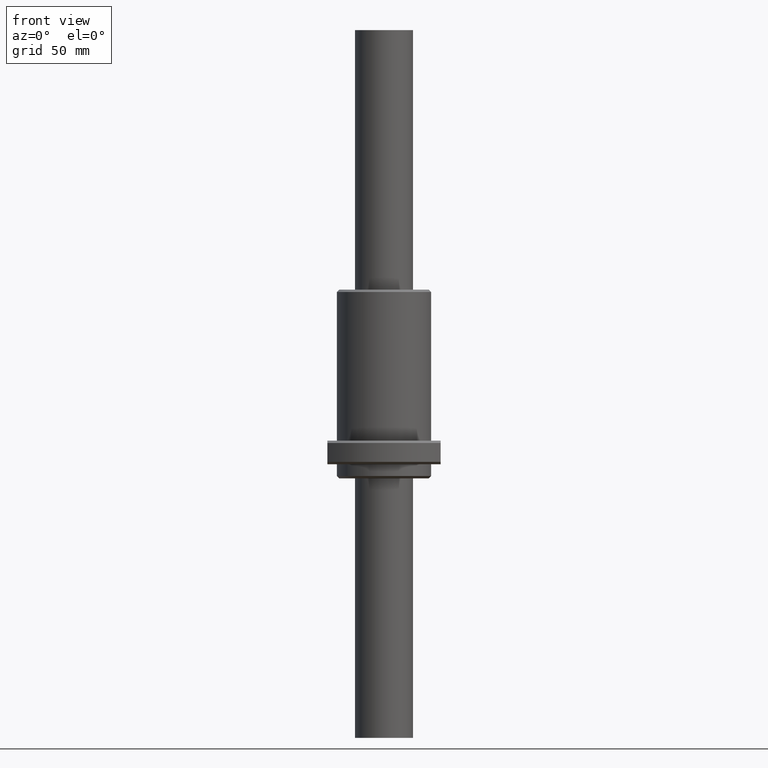
[diagram: clean part render]
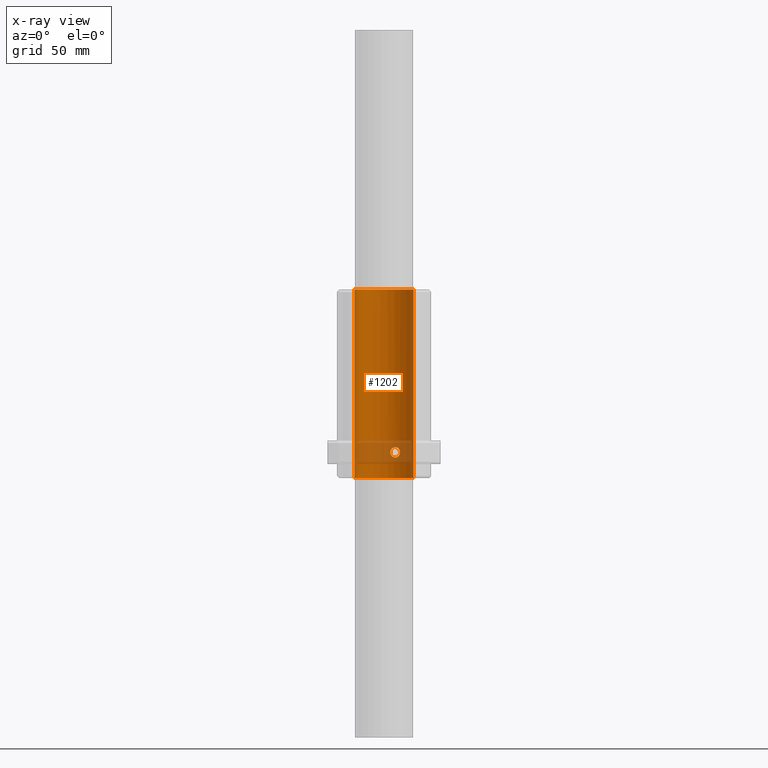
[diagram: x-ray — body ghosted, one internal face saturated and labeled with its STEP entity id]
A machine part, front view, then the same camera in x-ray: the body is ghosted and one INTERNAL B-rep face — a face not visible from any outside direction — is saturated and labeled: STEP entity #1202.
In plain terms, the highlighted cylindrical surface (edge-blend (fillet) strip) has radius 12.5 mm, axis along (0, 0, -1).
Its self-contained STEP definition (entity closure, byte-faithful):
#31 = EDGE_CURVE ( 'NONE', #309, #593, #1124, .T. ) ;
#45 = EDGE_CURVE ( 'NONE', #633, #766, #705, .T. ) ;
#72 = CARTESIAN_POINT ( 'NONE',  ( -3.106524345020807800, 12.10810110949519800, -12.35538704882144700 ) ) ;
#131 = VERTEX_POINT ( 'NONE', #513 ) ;
#145 = CARTESIAN_POINT ( 'NONE',  ( -5.438995687773288300, 11.25545272427018300, -13.10522581817127600 ) ) ;
#154 = CARTESIAN_POINT ( 'NONE',  ( -3.860740182591554600, 11.88961177563764000, -12.99522174551699800 ) ) ;
#246 = CARTESIAN_POINT ( 'NONE',  ( -2.948810318250494800, 12.14747396337795000, -12.11542174152340600 ) ) ;
#309 = VERTEX_POINT ( 'NONE', #1155 ) ;
#373 = CARTESIAN_POINT ( 'NONE',  ( -6.564767041758583900, 10.63752913587356000, -11.98505173124650500 ) ) ;
#397 = CARTESIAN_POINT ( 'NONE',  ( -2.880144347871259400, 12.16379710110599900, -11.98557884553799000 ) ) ;
#409 = CARTESIAN_POINT ( 'NONE',  ( -6.660662787008331700, 10.57774851595938300, -11.71644510149142000 ) ) ;
#427 = CARTESIAN_POINT ( 'NONE',  ( -4.247046791410019400, 11.75724900360912000, -13.14849499699304200 ) ) ;
#447 = CARTESIAN_POINT ( 'NONE',  ( 0.0000000000000000000, 0.0000000000000000000, 0.0000000000000000000 ) ) ;
#508 = CARTESIAN_POINT ( 'NONE',  ( 12.50000000000000000, 0.0000000000000000000, -80.00000029999999600 ) ) ;
#513 = CARTESIAN_POINT ( 'NONE',  ( -12.50000000000000000, 1.530808498934191500E-015, -80.00000029999999600 ) ) ;
#556 = CARTESIAN_POINT ( 'NONE',  ( -2.770083177205543200, 12.18933265494105300, -11.71726417858040400 ) ) ;
#566 = CARTESIAN_POINT ( 'NONE',  ( -6.745752129210343300, 10.52357602777019000, -11.29132969919908200 ) ) ;
#575 = CIRCLE ( 'NONE', #942, 12.50000000000000000 ) ;
#591 = CARTESIAN_POINT ( 'NONE',  ( -4.919145713803337600, 11.49230369320413900, -13.21938859072853700 ) ) ;
#593 = VERTEX_POINT ( 'NONE', #1749 ) ;
#612 = CARTESIAN_POINT ( 'NONE',  ( -6.016803512697008700, 10.95857979859629700, -12.77371291036502800 ) ) ;
#633 = VERTEX_POINT ( 'NONE', #1721 ) ;
#666 = CARTESIAN_POINT ( 'NONE',  ( -6.505979889155056200, 10.67374588657122700, -12.11240311343297000 ) ) ;
#673 = DIRECTION ( 'NONE',  ( 1.000000000000000000, 0.0000000000000000000, 0.0000000000000000000 ) ) ;
#674 = DIRECTION ( 'NONE',  ( -0.0000000000000000000, 0.0000000000000000000, -1.000000000000000000 ) ) ;
#676 = CARTESIAN_POINT ( 'NONE',  ( 0.0000000000000000000, 0.0000000000000000000, -80.00000029999999600 ) ) ;
#700 = CARTESIAN_POINT ( 'NONE',  ( -6.758090315234643000, 10.51561768516968500, -11.14691908505338000 ) ) ;
#705 = B_SPLINE_CURVE_WITH_KNOTS ( 'NONE', 3,
 ( #1057, #700, #566, #745, #409, #373, #666, #1656, #1016, #612, #1253, #145, #1310, #1123, #591, #940, #763, #427, #1564, #154, #1046, #1228, #1445, #1691, #72, #246, #397, #556, #734, #904, #1090, #1274 ),
 .UNSPECIFIED., .F., .F.,
 ( 4, 2, 2, 2, 2, 2, 2, 2, 2, 2, 2, 2, 2, 2, 2, 4 ),
 ( 0.0000000000000000000, 0.0004344500008711261600, 0.0008689000017422523200, 0.001303350002613378700, 0.001737800003484504600, 0.002606700005226758300, 0.003041150006097885500, 0.003475600006969012300, 0.003910050007840139100, 0.004344500008711266400, 0.004778950009582395300, 0.005213400010453524300, 0.005647850011324654200, 0.006082300012195784000, 0.006516750013066913000, 0.006951200013938042000 ),
 .UNSPECIFIED. ) ;
#734 = CARTESIAN_POINT ( 'NONE',  ( -2.728315810449121000, 12.19865299992029200, -11.57896095298088000 ) ) ;
#745 = CARTESIAN_POINT ( 'NONE',  ( -6.697341969784263300, 10.55445094454332800, -11.57534647087019800 ) ) ;
#749 = ORIENTED_EDGE ( 'NONE', *, *, #45, .F. ) ;
#763 = CARTESIAN_POINT ( 'NONE',  ( -4.514001827398785400, 11.65736239822431800, -13.20517205838560800 ) ) ;
#766 = VERTEX_POINT ( 'NONE', #1663 ) ;
#795 = EDGE_LOOP ( 'NONE', ( #1063, #1416, #1414, #824 ) ) ;
#824 = ORIENTED_EDGE ( 'NONE', *, *, #31, .T. ) ;
#888 = EDGE_CURVE ( 'NONE', #766, #633, #1646, .T. ) ;
#904 = CARTESIAN_POINT ( 'NONE',  ( -2.671645461801170000, 12.21118965131768900, -11.29401620297729100 ) ) ;
#940 = CARTESIAN_POINT ( 'NONE',  ( -4.651148603418120900, 11.60335535090539600, -13.21961555276189900 ) ) ;
#942 = AXIS2_PLACEMENT_3D ( 'NONE', #676, #674, #673 ) ;
#944 = DIRECTION ( 'NONE',  ( 0.0000000000000000000, -0.0000000000000000000, 1.000000000000000000 ) ) ;
#948 = CARTESIAN_POINT ( 'NONE',  ( -12.50000000000000000, 1.530808498934191500E-015, -80.00000029999999600 ) ) ;
#951 = LINE ( 'NONE', #948, #1255 ) ;
#955 = DIRECTION ( 'NONE',  ( 0.0000000000000000000, -0.0000000000000000000, 1.000000000000000000 ) ) ;
#958 = CARTESIAN_POINT ( 'NONE',  ( 12.50000000000000000, 0.0000000000000000000, -80.00000029999999600 ) ) ;
#961 = LINE ( 'NONE', #958, #1364 ) ;
#1016 = CARTESIAN_POINT ( 'NONE',  ( -6.285049368808043500, 10.80549644207970400, -12.46731220077721300 ) ) ;
#1046 = CARTESIAN_POINT ( 'NONE',  ( -3.736831958413635600, 11.92898355862364000, -12.92589638279988100 ) ) ;
#1057 = CARTESIAN_POINT ( 'NONE',  ( -6.758090315243666000, 10.51561768516388900, -10.99999410015943900 ) ) ;
#1063 = ORIENTED_EDGE ( 'NONE', *, *, #1413, .F. ) ;
#1090 = CARTESIAN_POINT ( 'NONE',  ( -2.656973085055796400, 12.21435606265385600, -11.14691939386164100 ) ) ;
#1123 = CARTESIAN_POINT ( 'NONE',  ( -5.051377189659498300, 11.43477794947379400, -13.20519464242790900 ) ) ;
#1124 = CIRCLE ( 'NONE', #1513, 12.50000000000000000 ) ;
#1141 = FACE_OUTER_BOUND ( 'NONE', #795, .T. ) ;
#1155 = CARTESIAN_POINT ( 'NONE',  ( 12.50000000000000000, 0.0000000000000000000, 0.0000000000000000000 ) ) ;
#1181 = AXIS2_PLACEMENT_3D ( 'NONE', #1237, #1233, #1229 ) ;
#1202 = ADVANCED_FACE ( 'NONE', ( #1141, #1334 ), #1230, .F. ) ;
#1228 = CARTESIAN_POINT ( 'NONE',  ( -3.505837126966634600, 11.99890277760916900, -12.76549010464803200 ) ) ;
#1229 = DIRECTION ( 'NONE',  ( 1.000000000000000000, 0.0000000000000000000, 0.0000000000000000000 ) ) ;
#1230 = CYLINDRICAL_SURFACE ( 'NONE', #1181, 12.50000000000000000 ) ;
#1233 = DIRECTION ( 'NONE',  ( 0.0000000000000000000, -0.0000000000000000000, 1.000000000000000000 ) ) ;
#1237 = CARTESIAN_POINT ( 'NONE',  ( 0.0000000000000000000, 0.0000000000000000000, -80.00000029999999600 ) ) ;
#1253 = CARTESIAN_POINT ( 'NONE',  ( -5.798397005473769500, 11.07701009507993100, -12.93899707061965800 ) ) ;
#1255 = VECTOR ( 'NONE', #944, 1000.000000000000000 ) ;
#1274 = CARTESIAN_POINT ( 'NONE',  ( -2.656973084998208700, 12.21435606266638600, -10.99999410000000000 ) ) ;
#1288 = DIRECTION ( 'NONE',  ( 1.000000000000000000, 0.0000000000000000000, 0.0000000000000000000 ) ) ;
#1310 = CARTESIAN_POINT ( 'NONE',  ( -5.312339376724162700, 11.31590069824273900, -13.14801666248160600 ) ) ;
#1334 = FACE_BOUND ( 'NONE', #1795, .T. ) ;
#1364 = VECTOR ( 'NONE', #955, 1000.000000000000000 ) ;
#1409 = EDGE_CURVE ( 'NONE', #1785, #309, #961, .T. ) ;
#1413 = EDGE_CURVE ( 'NONE', #131, #593, #951, .T. ) ;
#1414 = ORIENTED_EDGE ( 'NONE', *, *, #1409, .T. ) ;
#1416 = ORIENTED_EDGE ( 'NONE', *, *, #1688, .T. ) ;
#1445 = CARTESIAN_POINT ( 'NONE',  ( -3.397045781676551400, 12.03000111070766000, -12.67351549400689600 ) ) ;
#1460 = ORIENTED_EDGE ( 'NONE', *, *, #888, .F. ) ;
#1467 = DIRECTION ( 'NONE',  ( 0.0000000000000000000, -0.0000000000000000000, 1.000000000000000000 ) ) ;
#1513 = AXIS2_PLACEMENT_3D ( 'NONE', #447, #1467, #1288 ) ;
#1534 = CARTESIAN_POINT ( 'NONE',  ( -6.745476386810645800, 10.52375363114266100, -10.70597199796340800 ) ) ;
#1537 = CARTESIAN_POINT ( 'NONE',  ( -6.758090315252685400, 10.51561768515808900, -10.85306942333471400 ) ) ;
#1539 = CARTESIAN_POINT ( 'NONE',  ( -6.758090315243666000, 10.51561768516388900, -10.99999410015943900 ) ) ;
#1542 = CARTESIAN_POINT ( 'NONE',  ( -6.564533817147774300, 10.63767301363267700, -10.01440935512221100 ) ) ;
#1545 = CARTESIAN_POINT ( 'NONE',  ( -6.660415180484494400, 10.57790437681384100, -10.28272402217365300 ) ) ;
#1547 = CARTESIAN_POINT ( 'NONE',  ( -6.696539647854641500, 10.55496086770193500, -10.42102724782838200 ) ) ;
#1548 = CARTESIAN_POINT ( 'NONE',  ( -6.285337747773143100, 10.80534016877077300, -9.532889301235920600 ) ) ;
#1549 = CARTESIAN_POINT ( 'NONE',  ( -6.365075972721569100, 10.75836483139733900, -9.644601151640456400 ) ) ;
#1552 = CARTESIAN_POINT ( 'NONE',  ( -6.504437442493200500, 10.67468498554674600, -9.884566459061424800 ) ) ;
#1554 = CARTESIAN_POINT ( 'NONE',  ( -6.104421256056900400, 10.90856947060583500, -9.326472706320160500 ) ) ;
#1558 = CARTESIAN_POINT ( 'NONE',  ( -6.005504315818478200, 10.96350672640945400, -9.234498095604919900 ) ) ;
#1561 = CARTESIAN_POINT ( 'NONE',  ( -5.792725950178665400, 11.07740438430711000, -9.074091817367781600 ) ) ;
#1562 = CARTESIAN_POINT ( 'NONE',  ( -5.677269549876788400, 11.13718067514897400, -9.004766454619520700 ) ) ;
#1564 = CARTESIAN_POINT ( 'NONE',  ( -4.116330935516227600, 11.80355889391714000, -13.10654905454163500 ) ) ;
#1572 = CARTESIAN_POINT ( 'NONE',  ( -5.051118701103083800, 11.43488130452914800, -8.794816141624556500 ) ) ;
#1575 = CARTESIAN_POINT ( 'NONE',  ( -5.310514913391143600, 11.31674608427501200, -8.851493203047988700 ) ) ;
#1576 = CARTESIAN_POINT ( 'NONE',  ( -4.647924581940841000, 11.60464716443662400, -8.780599609271398300 ) ) ;
#1579 = CARTESIAN_POINT ( 'NONE',  ( -5.435691019004795300, 11.25706205360797100, -8.893439145522755500 ) ) ;
#1581 = CARTESIAN_POINT ( 'NONE',  ( -4.513745965159437800, 11.65747209424069000, -8.794793557581037600 ) ) ;
#1582 = CARTESIAN_POINT ( 'NONE',  ( -4.915952536333127100, 11.49366997050971400, -8.780372647238161600 ) ) ;
#1585 = CARTESIAN_POINT ( 'NONE',  ( -3.732543111596482400, 11.93271479587520500, -9.060991129543706900 ) ) ;
#1587 = CARTESIAN_POINT ( 'NONE',  ( -4.112856213749347800, 11.80475768005975500, -8.894762381895599600 ) ) ;
#1593 = CARTESIAN_POINT ( 'NONE',  ( -4.245158922526127500, 11.75794131591455000, -8.851971537556195800 ) ) ;
#1594 = CARTESIAN_POINT ( 'NONE',  ( -3.494363523500371800, 12.00340865247201600, -9.226275289893997900 ) ) ;
#1597 = CARTESIAN_POINT ( 'NONE',  ( -3.196438780129284800, 12.08484083689305600, -9.532675999641249100 ) ) ;
#1598 = CARTESIAN_POINT ( 'NONE',  ( -3.105008561599544000, 12.10849071526167000, -9.646565802614386300 ) ) ;
#1600 = CARTESIAN_POINT ( 'NONE',  ( -2.947055599822317400, 12.14790059478346700, -9.887585087165454900 ) ) ;
#1602 = CARTESIAN_POINT ( 'NONE',  ( -2.879877695580776100, 12.16386027902373900, -10.01493646941195700 ) ) ;
#1605 = CARTESIAN_POINT ( 'NONE',  ( -2.769797882166757500, 12.18939752904382000, -10.28354309928249300 ) ) ;
#1608 = CARTESIAN_POINT ( 'NONE',  ( -2.727387912604995800, 12.19885975717314800, -10.42464172996456800 ) ) ;
#1609 = CARTESIAN_POINT ( 'NONE',  ( -2.671324897679582000, 12.21125904614424400, -10.70865850172674200 ) ) ;
#1610 = CARTESIAN_POINT ( 'NONE',  ( -2.656973084940618800, 12.21435606267890800, -10.85306911596054400 ) ) ;
#1613 = CARTESIAN_POINT ( 'NONE',  ( -2.656973084998208700, 12.21435606266638600, -10.99999410000000000 ) ) ;
#1646 = B_SPLINE_CURVE_WITH_KNOTS ( 'NONE', 3,
 ( #1613, #1610, #1609, #1608, #1605, #1602, #1600, #1598, #1597, #1594, #1585, #1587, #1593, #1581, #1576, #1582, #1572, #1575, #1579, #1562, #1561, #1558, #1554, #1548, #1549, #1552, #1542, #1545, #1547, #1534, #1537, #1539 ),
 .UNSPECIFIED., .F., .F.,
 ( 4, 2, 2, 2, 2, 2, 2, 2, 2, 2, 2, 2, 2, 2, 2, 4 ),
 ( 0.006951200013938042000, 0.007385649103863557700, 0.007820098193789074400, 0.008254547283714591000, 0.008688996373640105900, 0.009557894553491132200, 0.009992343643416645400, 0.01042679273334215900, 0.01086124182326767000, 0.01129569091319318500, 0.01173014000311869600, 0.01216458909304421100, 0.01259903818296972300, 0.01303348727289523600, 0.01346793636282074900, 0.01390238545274626200 ),
 .UNSPECIFIED. ) ;
#1656 = CARTESIAN_POINT ( 'NONE',  ( -6.366423285705090000, 10.75756850391473000, -12.35342239786075800 ) ) ;
#1663 = CARTESIAN_POINT ( 'NONE',  ( -2.656973084998208700, 12.21435606266638600, -10.99999410000000000 ) ) ;
#1688 = EDGE_CURVE ( 'NONE', #131, #1785, #575, .T. ) ;
#1691 = CARTESIAN_POINT ( 'NONE',  ( -3.196124364207536800, 12.08493424950889400, -12.46709889917581800 ) ) ;
#1721 = CARTESIAN_POINT ( 'NONE',  ( -6.758090315243666000, 10.51561768516388900, -10.99999410015943900 ) ) ;
#1749 = CARTESIAN_POINT ( 'NONE',  ( -12.50000000000000000, 1.530808498934191500E-015, 0.0000000000000000000 ) ) ;
#1785 = VERTEX_POINT ( 'NONE', #508 ) ;
#1795 = EDGE_LOOP ( 'NONE', ( #749, #1460 ) ) ;